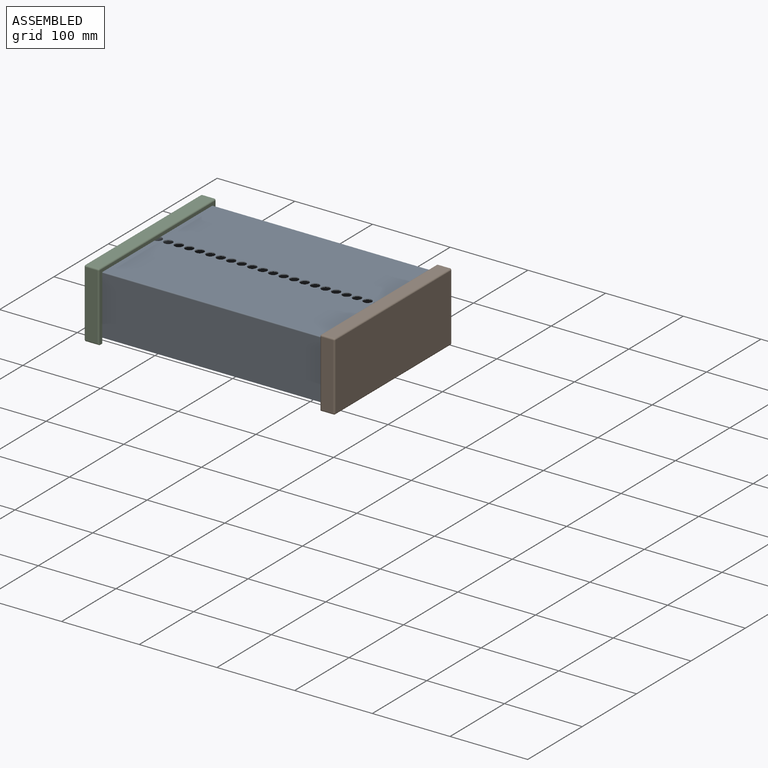
[diagram: assembled view]
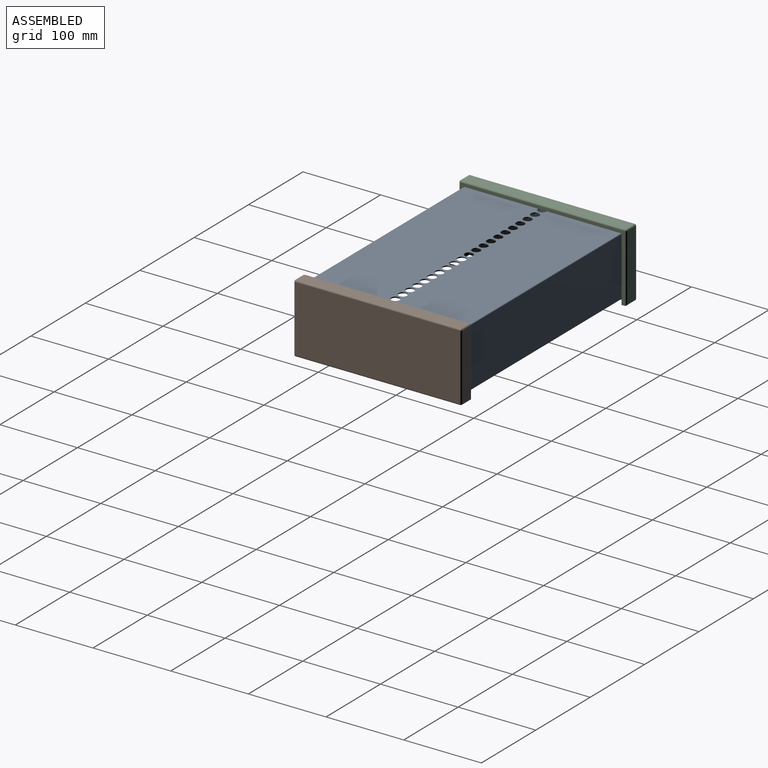
[diagram: assembled view, second angle]
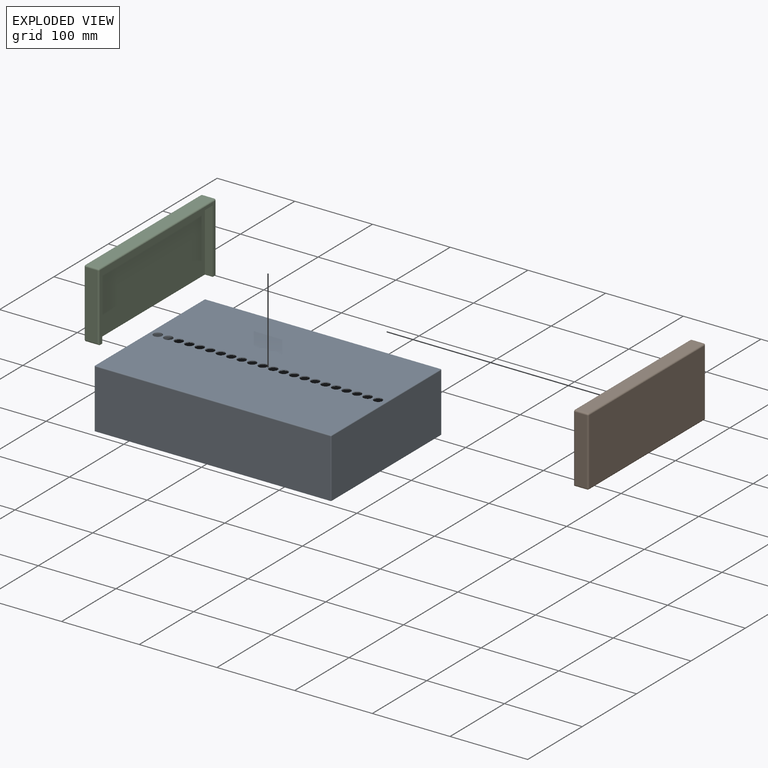
[diagram: exploded view]
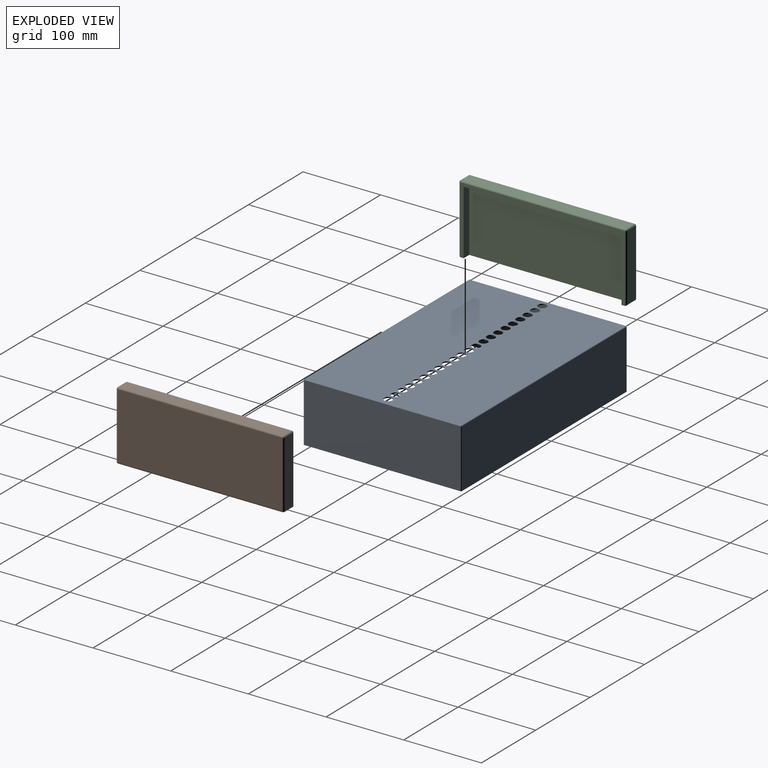
[diagram: exploded view, second angle]
ASSEMBLY  parts=3 mates=4
PART A: 45 faces, bbox 304.8x203.2x76.2 mm
  f0: plane 302.8x75.2mm, normal (0,1,0), area 22770.6mm2, adj f5,f8,f14,f17
  f1: plane 201.2x75.2mm, normal (-1,0,0), area 15130.2mm2, adj f5,f11,f15,f17
  f2: plane 302.8x75.2mm, normal (0,-1,0), area 22770.6mm2, adj f5,f6,f10,f11
  f3: plane 201.2x75.2mm, normal (1,0,0), area 15130.2mm2, adj f5,f6,f8,f9
  f4: plane 302.8x201.2mm, normal (0,0,1), area 58832.6mm2, adj f9,f10,f14,f15,f23,f24,f25,f26
  f5: plane 304.8x203.2mm, normal (0,0,-1), area 1313.2mm2, adj f0,f1,f2,f3,f6,f8,f11,f17
  f6: cylinder r=1mm len=75.2mm, axis (0,0,1), area 118.1mm2, adj f2,f3,f5,f7
  f7: sphere r=1mm, area 1.6mm2, adj f6,f9,f10
  f8: cylinder r=1mm len=75.2mm, axis (0,0,-1), area 118.1mm2, adj f0,f3,f5,f12
  f9: cylinder r=1mm len=201.2mm, axis (0,-1,0), area 316mm2, adj f3,f4,f7,f12
  f10: cylinder r=1mm len=302.8mm, axis (-1,0,0), area 475.6mm2, adj f2,f4,f7,f13
  f11: cylinder r=1mm len=75.2mm, axis (0,0,-1), area 118.1mm2, adj f1,f2,f5,f13
  f12: sphere r=1mm, area 1.6mm2, adj f8,f9,f14
  f13: sphere r=1mm, area 1.6mm2, adj f10,f11,f15
  f14: cylinder r=1mm len=302.8mm, axis (1,0,0), area 475.6mm2, adj f0,f4,f12,f16
  f15: cylinder r=1mm len=201.2mm, axis (0,1,0), area 316mm2, adj f1,f4,f13,f16
  f16: sphere r=1mm, area 1.6mm2, adj f14,f15,f17
  f17: cylinder r=1mm len=75.2mm, axis (0,0,1), area 118.1mm2, adj f0,f1,f5,f16
  f18: plane 302.2x74.9mm, normal (0,-1,0), area 22634.8mm2, adj f5,f19,f21,f22
  f19: plane 200.6x74.9mm, normal (1,0,0), area 15024.9mm2, adj f5,f18,f20,f22
  f20: plane 302.2x74.9mm, normal (0,1,0), area 22634.8mm2, adj f5,f19,f21,f22
  f21: plane 200.6x74.9mm, normal (-1,0,0), area 15024.9mm2, adj f5,f18,f20,f22
  f22: plane 302.2x200.6mm, normal (0,0,-1), area 58530.6mm2, adj f18,f19,f20,f21,f23,f24,f25,f26
  f23: cylinder r=5.5mm len=11mm, axis (0,0,1), area 44.9mm2, adj f4,f22
  f24: cylinder r=5.5mm len=11mm, axis (0,0,1), area 44.9mm2, adj f4,f22
  f25: cylinder r=5.5mm len=11mm, axis (0,0,1), area 44.9mm2, adj f4,f22
  f26: cylinder r=5.5mm len=11mm, axis (0,0,1), area 44.9mm2, adj f4,f22
  f27: cylinder r=5.5mm len=11mm, axis (0,0,1), area 44.9mm2, adj f4,f22
  f28: cylinder r=5.5mm len=11mm, axis (0,0,1), area 44.9mm2, adj f4,f22
  f29: cylinder r=5.5mm len=11mm, axis (0,0,1), area 44.9mm2, adj f4,f22
  f30: cylinder r=5.5mm len=11mm, axis (0,0,1), area 44.9mm2, adj f4,f22
  f31: cylinder r=5.5mm len=11mm, axis (0,0,1), area 44.9mm2, adj f4,f22
  f32: cylinder r=5.5mm len=11mm, axis (0,0,1), area 44.9mm2, adj f4,f22
  f33: cylinder r=5.5mm len=11mm, axis (0,0,1), area 44.9mm2, adj f4,f22
  f34: cylinder r=5.5mm len=11mm, axis (0,0,1), area 44.9mm2, adj f4,f22
  f35: cylinder r=5.5mm len=11mm, axis (0,0,1), area 44.9mm2, adj f4,f22
  f36: cylinder r=5.5mm len=11mm, axis (0,0,1), area 44.9mm2, adj f4,f22
  f37: cylinder r=5.5mm len=11mm, axis (0,0,1), area 44.9mm2, adj f4,f22
  f38: cylinder r=5.5mm len=11mm, axis (0,0,1), area 44.9mm2, adj f4,f22
  f39: cylinder r=5.5mm len=11mm, axis (0,0,1), area 44.9mm2, adj f4,f22
  f40: cylinder r=5.5mm len=11mm, axis (0,0,1), area 44.9mm2, adj f4,f22
  f41: cylinder r=5.5mm len=11mm, axis (0,0,1), area 44.9mm2, adj f4,f22
  f42: cylinder r=5.5mm len=11mm, axis (0,0,1), area 44.9mm2, adj f4,f22
  f43: cylinder r=5.5mm len=11mm, axis (0,0,1), area 44.9mm2, adj f4,f22
  f44: cylinder r=5.5mm len=11mm, axis (0,0,1), area 44.9mm2, adj f4,f22
PART B: 27 faces, bbox 19.1x215.9x88.9 mm
  f0: plane 211.9x86.9mm, normal (1,0,0), area 1507.9mm2, adj f5,f6,f7,f8,f15,f22,f26
  f1: plane 84.9x15.05mm, normal (0,-1,0), area 1277.7mm2, adj f20,f21,f25,f26
  f2: plane 84.9x15.05mm, normal (0,1,0), area 1277.7mm2, adj f11,f12,f14,f15
  f3: plane 211.9x84.9mm, normal (-1,0,0), area 17990.3mm2, adj f12,f13,f19,f20
  f4: plane 211.9x15.05mm, normal (0,0,1), area 3189.1mm2, adj f13,f14,f21,f22
  f5: plane 211.9x17.05mm, normal (0,0,-1), area 1548.4mm2, adj f0,f7,f8,f9,f11,f19,f25
  f6: plane 203.2x10.16mm, normal (0,0,-1), area 2064.5mm2, adj f0,f7,f8,f9
  f7: plane 83.2x10.16mm, normal (0,1,0), area 845.3mm2, adj f0,f5,f6,f9
  f8: plane 83.2x10.16mm, normal (0,-1,0), area 845.3mm2, adj f0,f5,f6,f9
  f9: plane 203.2x83.2mm, normal (1,0,0), area 16906.2mm2, adj f5,f6,f7,f8
  f10: sphere r=2mm, area 6.3mm2, adj f12,f13,f14
  f11: cylinder r=2mm len=17.05mm, axis (-1,0,0), area 51.3mm2, adj f2,f5,f15,f16
  f12: cylinder r=2mm len=84.9mm, axis (0,0,1), area 266.7mm2, adj f2,f3,f10,f16
  f13: cylinder r=2mm len=211.9mm, axis (0,1,0), area 665.7mm2, adj f3,f4,f10,f17
  f14: cylinder r=2mm len=15.05mm, axis (1,0,0), area 47.3mm2, adj f2,f4,f10,f18
  f15: cylinder r=2mm len=86.9mm, axis (0,0,-1), area 270.7mm2, adj f0,f2,f11,f18
  f16: sphere r=2mm, area 6.3mm2, adj f11,f12,f19
  f17: sphere r=2mm, area 6.3mm2, adj f13,f20,f21
  f18: sphere r=2mm, area 6.3mm2, adj f14,f15,f22
  f19: cylinder r=2mm len=211.9mm, axis (0,-1,0), area 665.7mm2, adj f3,f5,f16,f23
  f20: cylinder r=2mm len=84.9mm, axis (0,0,-1), area 266.7mm2, adj f1,f3,f17,f23
  f21: cylinder r=2mm len=15.05mm, axis (-1,0,0), area 47.3mm2, adj f1,f4,f17,f24
  f22: cylinder r=2mm len=211.9mm, axis (0,-1,0), area 665.7mm2, adj f0,f4,f18,f24
  f23: sphere r=2mm, area 6.3mm2, adj f19,f20,f25
  f24: sphere r=2mm, area 6.3mm2, adj f21,f22,f26
  f25: cylinder r=2mm len=17.05mm, axis (1,0,0), area 51.3mm2, adj f1,f5,f23,f26
  f26: cylinder r=2mm len=86.9mm, axis (0,0,1), area 270.7mm2, adj f0,f1,f24,f25
PART C: same geometry as B
PLACE A t=(15.61,0,-79.89)mm
PLACE B rot(axis=(0,0,-1),180deg) t=(167.37,0,-86.89)mm
PLACE C t=(-136.16,0,-86.89)mm
MATE planar B.f6 <-> A.f4  axis (0,0,-1) through (162.93,0,-3.69)mm
MATE planar B.f9 <-> A.f3  axis (-1,0,0) through (168.01,0,-45.29)mm
MATE planar C.f9 <-> A.f1  axis (1,0,0) through (-136.79,0,-45.29)mm
MATE planar C.f6 <-> A.f4  axis (0,0,-1) through (-131.71,0,-3.69)mm
